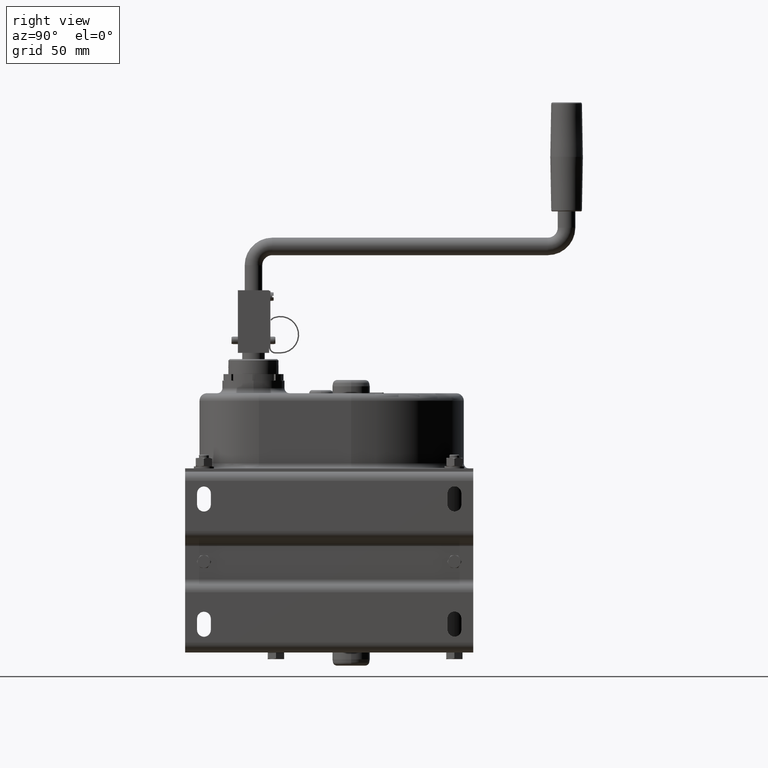
[diagram: clean part render]
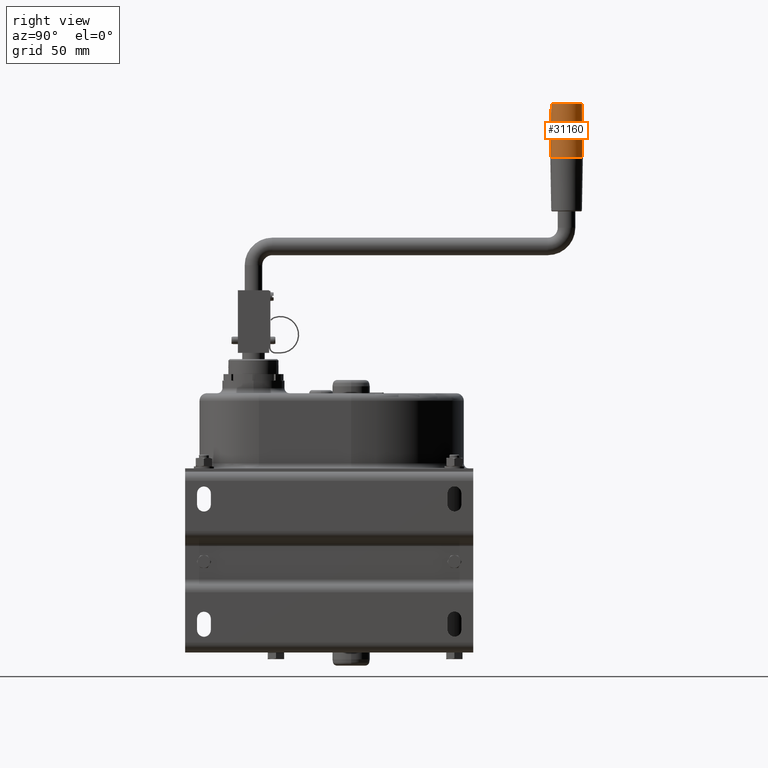
[diagram: same view with one face highlighted and labeled with its STEP entity id]
A machine part, right view. The second image highlights one B-rep face of the part: STEP entity #31160.
In plain terms, the highlighted conical surface has half-angle 1 deg.
Its self-contained STEP definition (entity closure, byte-faithful):
#29380=CARTESIAN_POINT('',(121.5,-237.,-1.59204083889156E-15));
#29390=VERTEX_POINT('',#29380);
#29420=CARTESIAN_POINT('',(121.5,-250.,0.));
#29430=DIRECTION('',(1.,0.,0.));
#29440=DIRECTION('',(0.,1.,0.));
#29450=AXIS2_PLACEMENT_3D('',#29420,#29430,#29440);
#29460=CIRCLE('',#29450,13.);
#29470=CARTESIAN_POINT('',(121.5,-263.,0.));
#29480=VERTEX_POINT('',#29470);
#29490=EDGE_CURVE('',#29390,#29480,#29460,.T.);
#29730=CARTESIAN_POINT('',(121.5,-263.,-1.59204083889156E-15));
#29740=DIRECTION('',(-0.999847695156391,-0.0174524064372835,
-2.13730336808379E-18));
#29750=VECTOR('',#29740,744.882950481153);
#29760=LINE('',#29730,#29750);
#29770=CARTESIAN_POINT('',(164.017452406437,-262.257855107663,0.));
#29780=VERTEX_POINT('',#29770);
#29790=EDGE_CURVE('',#29780,#29480,#29760,.T.);
#29810=CARTESIAN_POINT('',(164.017452406437,-250.,0.));
#29820=DIRECTION('',(1.,0.,0.));
#29830=DIRECTION('',(0.,1.,0.));
#29840=AXIS2_PLACEMENT_3D('',#29810,#29820,#29830);
#29850=CIRCLE('',#29840,12.2578551076632);
#29860=CARTESIAN_POINT('',(164.017452406437,-237.742144892337,0.));
#29870=VERTEX_POINT('',#29860);
#29900=CARTESIAN_POINT('',(121.5,-237.,0.));
#29910=DIRECTION('',(-0.999847695156391,0.0174524064372835,0.));
#29920=VECTOR('',#29910,744.882950481153);
#29930=LINE('',#29900,#29920);
#29940=EDGE_CURVE('',#29870,#29390,#29930,.T.);
#31040=CARTESIAN_POINT('',(121.5,-250.,0.));
#31050=DIRECTION('',(-1.,0.,0.));
#31060=DIRECTION('',(0.,1.,0.));
#31070=AXIS2_PLACEMENT_3D('',#31040,#31050,#31060);
#31080=CONICAL_SURFACE('',#31070,13.,0.0174532925199433);
#31090=EDGE_CURVE('',#29870,#29780,#29850,.T.);
#31100=ORIENTED_EDGE('',*,*,#31090,.F.);
#31110=ORIENTED_EDGE('',*,*,#29790,.F.);
#31120=ORIENTED_EDGE('',*,*,#29490,.T.);
#31130=ORIENTED_EDGE('',*,*,#29940,.T.);
#31140=EDGE_LOOP('',(#31130,#31120,#31110,#31100));
#31150=FACE_OUTER_BOUND('',#31140,.T.);
#31160=ADVANCED_FACE('',(#31150),#31080,.T.);